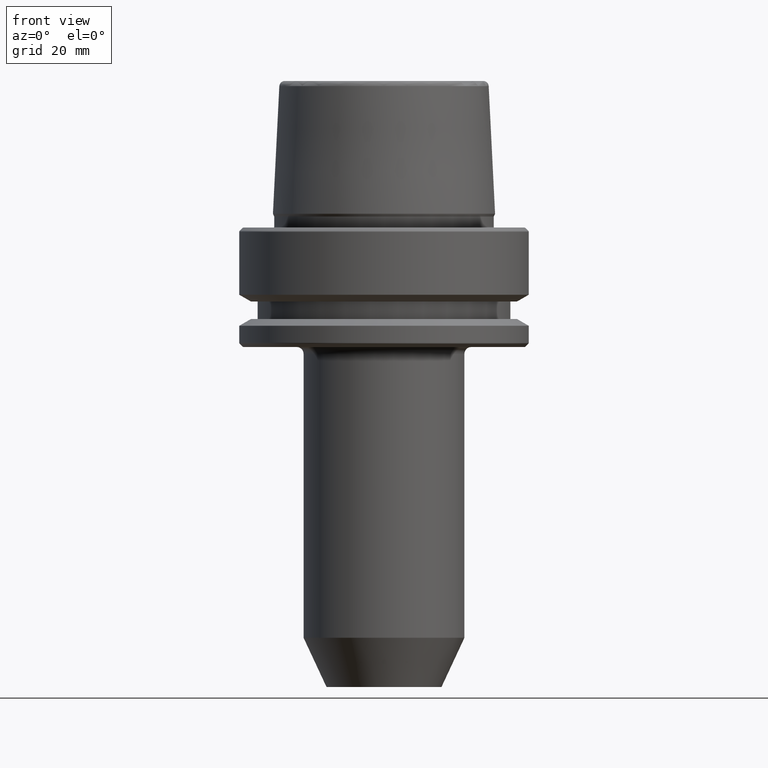
[diagram: clean part render]
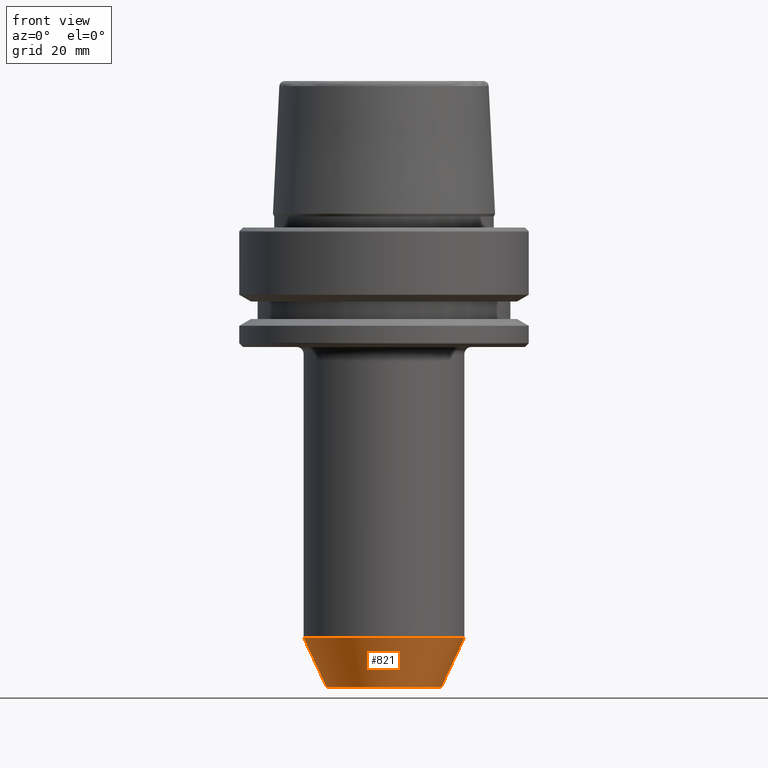
[diagram: same view with one face highlighted and labeled with its STEP entity id]
A machine part, front view. The second image highlights one B-rep face of the part: STEP entity #821.
In plain terms, the highlighted conical surface has half-angle 25 deg.
Its self-contained STEP definition (entity closure, byte-faithful):
#15 = EDGE_CURVE ( 'NONE', #1151, #1018, #70, .T. ) ;
#18 = LINE ( 'NONE', #943, #542 ) ;
#49 = CIRCLE ( 'NONE', #353, 12.50000000000000000 ) ;
#66 = CARTESIAN_POINT ( 'NONE',  ( -17.50000000000000000, 2.143131898507868200E-015, -89.27746539745216100 ) ) ;
#70 = CIRCLE ( 'NONE', #563, 17.50000000000000000 ) ;
#71 = DIRECTION ( 'NONE',  ( -0.4226182617406976100, 5.175581015019636600E-017, 0.9063077870366508200 ) ) ;
#81 = VECTOR ( 'NONE', #969, 1000.000000000000000 ) ;
#99 = VERTEX_POINT ( 'NONE', #135 ) ;
#134 = CARTESIAN_POINT ( 'NONE',  ( 0.0000000000000000000, 0.0000000000000000000, -100.0000000000000000 ) ) ;
#135 = CARTESIAN_POINT ( 'NONE',  ( -12.50000000000000000, 1.836970198721030000E-015, -100.0000000000000000 ) ) ;
#168 = CARTESIAN_POINT ( 'NONE',  ( 0.0000000000000000000, 0.0000000000000000000, -89.27746539745216100 ) ) ;
#246 = FACE_OUTER_BOUND ( 'NONE', #258, .T. ) ;
#258 = EDGE_LOOP ( 'NONE', ( #826, #689, #1041, #1109 ) ) ;
#353 = AXIS2_PLACEMENT_3D ( 'NONE', #134, #797, #1036 ) ;
#386 = CARTESIAN_POINT ( 'NONE',  ( 12.50000000000000000, 0.0000000000000000000, -100.0000000000000000 ) ) ;
#462 = EDGE_CURVE ( 'NONE', #99, #685, #49, .T. ) ;
#542 = VECTOR ( 'NONE', #71, 1000.000000000000000 ) ;
#563 = AXIS2_PLACEMENT_3D ( 'NONE', #168, #900, #886 ) ;
#685 = VERTEX_POINT ( 'NONE', #1259 ) ;
#689 = ORIENTED_EDGE ( 'NONE', *, *, #462, .T. ) ;
#708 = CARTESIAN_POINT ( 'NONE',  ( 0.0000000000000000000, 0.0000000000000000000, -100.0000000000000000 ) ) ;
#797 = DIRECTION ( 'NONE',  ( -0.0000000000000000000, -0.0000000000000000000, 1.000000000000000000 ) ) ;
#821 = ADVANCED_FACE ( 'NONE', ( #246 ), #1254, .T. ) ;
#826 = ORIENTED_EDGE ( 'NONE', *, *, #1179, .F. ) ;
#833 = CARTESIAN_POINT ( 'NONE',  ( 17.50000000000000000, 0.0000000000000000000, -89.27746539745216100 ) ) ;
#847 = LINE ( 'NONE', #386, #81 ) ;
#886 = DIRECTION ( 'NONE',  ( 1.000000000000000000, 0.0000000000000000000, 0.0000000000000000000 ) ) ;
#900 = DIRECTION ( 'NONE',  ( -0.0000000000000000000, -0.0000000000000000000, 1.000000000000000000 ) ) ;
#943 = CARTESIAN_POINT ( 'NONE',  ( -12.50000000000000000, 1.530808498934191500E-015, -100.0000000000000000 ) ) ;
#969 = DIRECTION ( 'NONE',  ( 0.4226182617406976100, 0.0000000000000000000, 0.9063077870366508200 ) ) ;
#1018 = VERTEX_POINT ( 'NONE', #833 ) ;
#1036 = DIRECTION ( 'NONE',  ( 1.000000000000000000, 0.0000000000000000000, 0.0000000000000000000 ) ) ;
#1041 = ORIENTED_EDGE ( 'NONE', *, *, #1100, .T. ) ;
#1068 = DIRECTION ( 'NONE',  ( -0.0000000000000000000, -0.0000000000000000000, 1.000000000000000000 ) ) ;
#1095 = DIRECTION ( 'NONE',  ( 1.000000000000000000, 0.0000000000000000000, 0.0000000000000000000 ) ) ;
#1100 = EDGE_CURVE ( 'NONE', #685, #1018, #847, .T. ) ;
#1108 = AXIS2_PLACEMENT_3D ( 'NONE', #708, #1068, #1095 ) ;
#1109 = ORIENTED_EDGE ( 'NONE', *, *, #15, .F. ) ;
#1151 = VERTEX_POINT ( 'NONE', #66 ) ;
#1179 = EDGE_CURVE ( 'NONE', #99, #1151, #18, .T. ) ;
#1254 = CONICAL_SURFACE ( 'NONE', #1108, 12.50000000000000000, 0.4363323129985803800 ) ;
#1259 = CARTESIAN_POINT ( 'NONE',  ( 12.50000000000000000, 0.0000000000000000000, -100.0000000000000000 ) ) ;